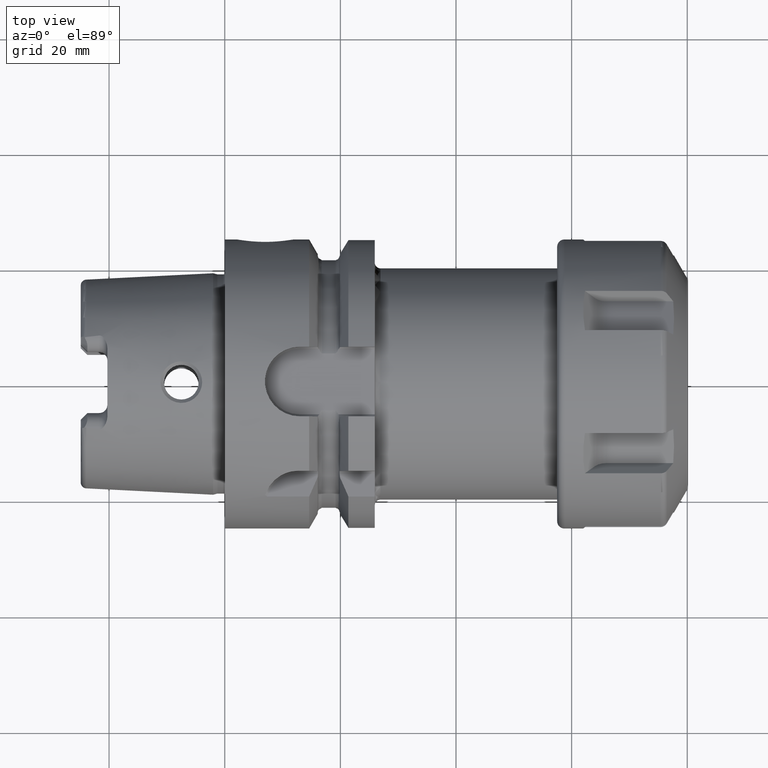
[diagram: clean part render]
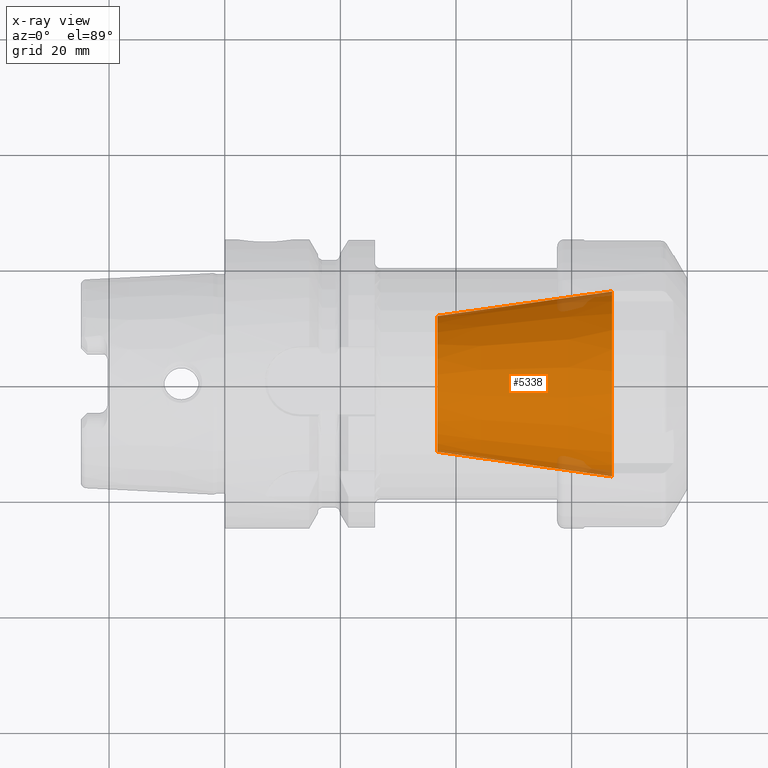
[diagram: x-ray — body ghosted, one internal face saturated and labeled with its STEP entity id]
A machine part, top view, then the same camera in x-ray: the body is ghosted and one INTERNAL B-rep face — a face not visible from any outside direction — is saturated and labeled: STEP entity #5338.
In plain terms, the highlighted conical surface has half-angle 8 deg.
Its self-contained STEP definition (entity closure, byte-faithful):
#1969=CARTESIAN_POINT('',(6.7E1,0.E0,0.E0));
#1970=DIRECTION('',(1.E0,0.E0,0.E0));
#1971=DIRECTION('',(0.E0,1.E0,0.E0));
#1972=AXIS2_PLACEMENT_3D('',#1969,#1970,#1971);
#1979=DIRECTION('',(-9.902680687416E-1,1.391731009601E-1,0.E0));
#1980=VECTOR('',#1979,3.053751027089E1);
#1981=CARTESIAN_POINT('',(6.7E1,-1.6E1,0.E0));
#1982=LINE('',#1981,#1980);
#1983=DIRECTION('',(-9.902680687416E-1,-1.391731009601E-1,0.E0));
#1984=VECTOR('',#1983,3.053751027089E1);
#1985=CARTESIAN_POINT('',(6.7E1,1.6E1,0.E0));
#1986=LINE('',#1985,#1984);
#2000=CARTESIAN_POINT('',(3.675967867987E1,0.E0,0.E0));
#2001=DIRECTION('',(1.E0,0.E0,0.E0));
#2002=DIRECTION('',(0.E0,1.E0,0.E0));
#2003=AXIS2_PLACEMENT_3D('',#2000,#2001,#2002);
#3251=CARTESIAN_POINT('',(3.675967867987E1,1.175E1,0.E0));
#3253=VERTEX_POINT('',#3251);
#3255=CARTESIAN_POINT('',(3.675967867987E1,-1.175E1,0.E0));
#3257=VERTEX_POINT('',#3255);
#3259=CARTESIAN_POINT('',(6.7E1,1.6E1,0.E0));
#3260=CARTESIAN_POINT('',(6.7E1,-1.6E1,0.E0));
#3261=VERTEX_POINT('',#3259);
#3262=VERTEX_POINT('',#3260);
#5324=CARTESIAN_POINT('',(5.187983933993E1,0.E0,0.E0));
#5325=DIRECTION('',(1.E0,0.E0,0.E0));
#5326=DIRECTION('',(0.E0,-1.E0,0.E0));
#5327=AXIS2_PLACEMENT_3D('',#5324,#5325,#5326);
#5328=CONICAL_SURFACE('',#5327,1.3875E1,8.E0);
#5329=ORIENTED_EDGE('',*,*,#5317,.F.);
#5331=ORIENTED_EDGE('',*,*,#5330,.T.);
#5333=ORIENTED_EDGE('',*,*,#5332,.T.);
#5335=ORIENTED_EDGE('',*,*,#5334,.F.);
#5336=EDGE_LOOP('',(#5329,#5331,#5333,#5335));
#5337=FACE_OUTER_BOUND('',#5336,.F.);
#5338=ADVANCED_FACE('',(#5337),#5328,.F.);
#1973=CIRCLE('',#1972,1.6E1);
#2004=CIRCLE('',#2003,1.175E1);
#5317=EDGE_CURVE('',#3261,#3262,#1973,.T.);
#5330=EDGE_CURVE('',#3261,#3253,#1986,.T.);
#5332=EDGE_CURVE('',#3253,#3257,#2004,.T.);
#5334=EDGE_CURVE('',#3262,#3257,#1982,.T.);